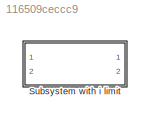
MODEL slx_116509ceccc9
KIND model
CONFIG AbsTol = auto
CONFIG EnableMultiTasking = off
CONFIG FixedStep = auto
CONFIG MaxStep = auto
CONFIG MinStep = auto
CONFIG RelTol = 1e-3
CONFIG SampleTimeConstraint = Unconstrained
CONFIG Solver = VariableStepAuto
CONFIG SolverName = VariableStepAuto
CONFIG StartTime = 0.0
CONFIG StopTime = 10.0
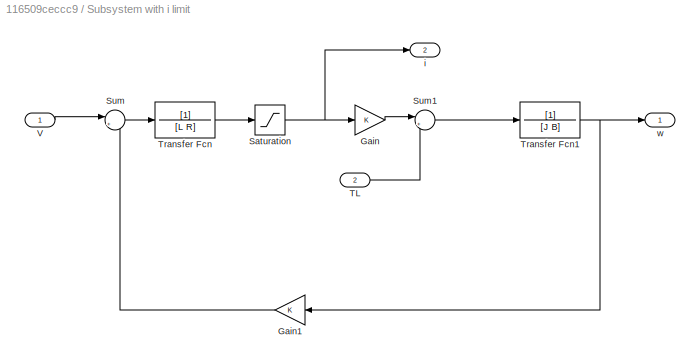
BLOCK [SubSystem] Subsystem with i limit
  Ports = [2, 2]
  RequestExecContextInheritance = off
BLOCK [Gain] Subsystem with i limit/Gain
  Gain = K
  OutDataTypeStr = Inherit: Inherit via internal rule
  ParamDataTypeStr = Inherit: Inherit via internal rule
  SaturateOnIntegerOverflow = off
BLOCK [Gain] Subsystem with i limit/Gain1
  Gain = K
  OutDataTypeStr = Inherit: Inherit via internal rule
  ParamDataTypeStr = Inherit: Inherit via internal rule
  SaturateOnIntegerOverflow = off
BLOCK [Saturate] Subsystem with i limit/Saturation
  InputPortMap = u0
  LowerLimit = -20
  Ports = [1, 1]
  UpperLimit = 20
BLOCK [Sum] Subsystem with i limit/Sum
  IconShape = round
  InputSameDT = off
  Inputs = |+-
  OutDataTypeStr = Inherit: Inherit via internal rule
  Ports = [2, 1]
  SaturateOnIntegerOverflow = off
BLOCK [Sum] Subsystem with i limit/Sum1
  IconShape = round
  InputSameDT = off
  Inputs = |++
  OutDataTypeStr = Inherit: Inherit via internal rule
  Ports = [2, 1]
  SaturateOnIntegerOverflow = off
BLOCK [Inport] Subsystem with i limit/TL
  IconDisplay = Port number
  Port = 2
BLOCK [TransferFcn] Subsystem with i limit/Transfer Fcn
  Denominator = [L R]
BLOCK [TransferFcn] Subsystem with i limit/Transfer Fcn1
  Denominator = [J B]
BLOCK [Inport] Subsystem with i limit/V
  IconDisplay = Port number
BLOCK [Outport] Subsystem with i limit/i
  IconDisplay = Port number
  Port = 2
BLOCK [Outport] Subsystem with i limit/w
  IconDisplay = Port number
LINE Subsystem with i limit/Gain1:1 -> Subsystem with i limit/Sum:2
LINE Subsystem with i limit/Gain:1 -> Subsystem with i limit/Sum1:1
NET Subsystem with i limit/Saturation:1 -> Subsystem with i limit/Gain:1, Subsystem with i limit/i:1
LINE Subsystem with i limit/Sum1:1 -> Subsystem with i limit/Transfer Fcn1:1
LINE Subsystem with i limit/Sum:1 -> Subsystem with i limit/Transfer Fcn:1
LINE Subsystem with i limit/TL:1 -> Subsystem with i limit/Sum1:2
NET Subsystem with i limit/Transfer Fcn1:1 -> Subsystem with i limit/Gain1:1, Subsystem with i limit/w:1
LINE Subsystem with i limit/Transfer Fcn:1 -> Subsystem with i limit/Saturation:1
LINE Subsystem with i limit/V:1 -> Subsystem with i limit/Sum:1
note: NET lines group one-source signal fan-out (src -> all destinations, sorted); 1:1 wires keep LINE
